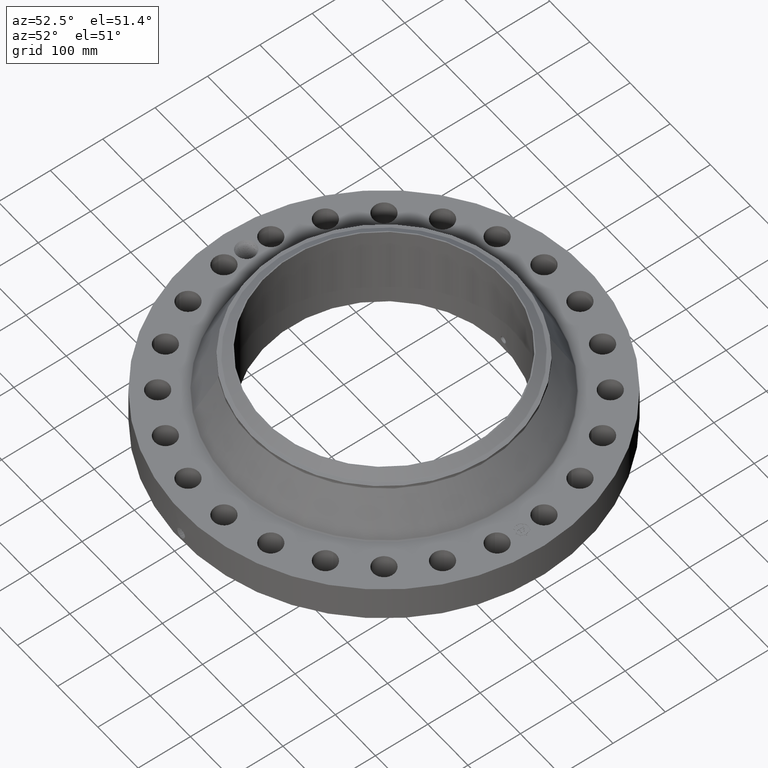
[diagram: clean part render]
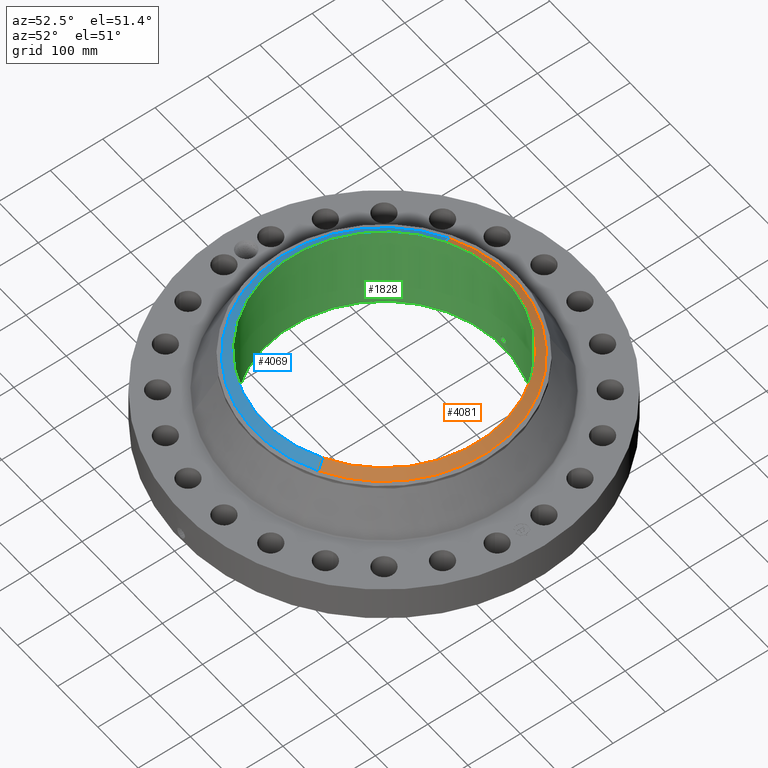
[diagram: same view with three faces highlighted in distinct colors, each labeled with its STEP entity id]
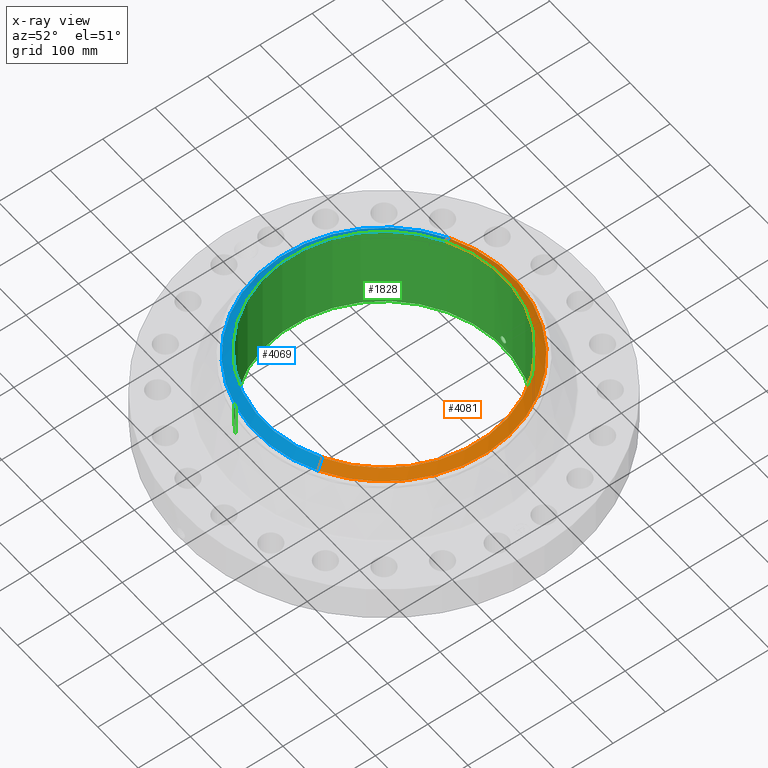
[diagram: x-ray of the same camera — body ghosted, the three highlighted faces saturated]
A machine part, auxiliary view with three faces highlighted in distinct colors.
The next image is the same camera in x-ray (body ghosted, the three faces saturated) — at least one of them is partly hidden behind the body in this view.
Their STEP definitions:

[orange] entity #4081 — the highlighted conical surface has half-angle 52.5 deg.
#3216=AXIS2_PLACEMENT_3D('Circle Axis2P3D',#3214,#3215,$) ;
#4042=AXIS2_PLACEMENT_3D('Cone Axis2P3D',#4039,#4040,#4041) ;
#4072=AXIS2_PLACEMENT_3D('Circle Axis2P3D',#4070,#4071,$) ;
#3214=CARTESIAN_POINT('Axis2P3D Location',(0.,0.,6.87000000003)) ;
#3218=CARTESIAN_POINT('Vertex',(4.33771769817,-7.94013898675,6.87000000003)) ;
#3220=CARTESIAN_POINT('Vertex',(-4.33771769817,7.94013898675,6.87000000003)) ;
#4039=CARTESIAN_POINT('Axis2P3D Location',(0.,0.,6.87000000003)) ;
#4044=CARTESIAN_POINT('Line Origine',(-4.49265900072,8.22375713866,6.62201437259)) ;
#4048=CARTESIAN_POINT('Vertex',(-4.64760030327,8.50737529056,6.37402874516)) ;
#4055=CARTESIAN_POINT('Vertex',(4.64760030327,-8.50737529056,6.37402874516)) ;
#4058=CARTESIAN_POINT('Line Origine',(4.49265900072,-8.22375713866,6.62201437259)) ;
#4070=CARTESIAN_POINT('Axis2P3D Location',(0.,0.,6.37402874516)) ;
#3215=DIRECTION('Axis2P3D Direction',(0.,0.,-0.0393700787402)) ;
#4040=DIRECTION('Axis2P3D Direction',(-0.,-0.,-0.0393700787402)) ;
#4041=DIRECTION('Axis2P3D XDirection',(-0.0188750212049,0.0345504945626,0.)) ;
#4045=DIRECTION('Vector Direction',(-0.014974561121,0.02741075027,-0.023966985394)) ;
#4059=DIRECTION('Vector Direction',(0.014974561121,-0.02741075027,-0.023966985394)) ;
#4071=DIRECTION('Axis2P3D Direction',(0.,0.,-0.0393700787402)) ;
#4046=VECTOR('Line Direction',#4045,0.0393700787402) ;
#4060=VECTOR('Line Direction',#4059,0.0393700787402) ;
#4076=ORIENTED_EDGE('',*,*,#3222,.F.) ;
#4077=ORIENTED_EDGE('',*,*,#4062,.T.) ;
#4078=ORIENTED_EDGE('',*,*,#4074,.T.) ;
#4079=ORIENTED_EDGE('',*,*,#4050,.F.) ;
#4081=ADVANCED_FACE('PartBody',(#4080),#4043,.T.) ;
#3217=CIRCLE('generated circle',#3216,9.04774015752) ;
#4073=CIRCLE('generated circle',#4072,9.69410248106) ;
#4043=CONICAL_SURFACE('Cone',#4042,9.04774015752,0.916297857297) ;
#3222=EDGE_CURVE('',#3219,#3221,#3217,.F.) ;
#4050=EDGE_CURVE('',#3221,#4049,#4047,.T.) ;
#4062=EDGE_CURVE('',#3219,#4056,#4061,.T.) ;
#4074=EDGE_CURVE('',#4056,#4049,#4073,.F.) ;
#4075=EDGE_LOOP('',(#4076,#4077,#4078,#4079)) ;
#4080=FACE_OUTER_BOUND('',#4075,.T.) ;
#4047=LINE('Line',#4044,#4046) ;
#4061=LINE('Line',#4058,#4060) ;
#3219=VERTEX_POINT('',#3218) ;
#3221=VERTEX_POINT('',#3220) ;
#4049=VERTEX_POINT('',#4048) ;
#4056=VERTEX_POINT('',#4055) ;

[blue] entity #4069 — the highlighted conical surface has half-angle 52.5 deg.
#3225=AXIS2_PLACEMENT_3D('Circle Axis2P3D',#3223,#3224,$) ;
#4042=AXIS2_PLACEMENT_3D('Cone Axis2P3D',#4039,#4040,#4041) ;
#4053=AXIS2_PLACEMENT_3D('Circle Axis2P3D',#4051,#4052,$) ;
#3218=CARTESIAN_POINT('Vertex',(4.33771769817,-7.94013898675,6.87000000003)) ;
#3220=CARTESIAN_POINT('Vertex',(-4.33771769817,7.94013898675,6.87000000003)) ;
#3223=CARTESIAN_POINT('Axis2P3D Location',(0.,0.,6.87000000003)) ;
#4039=CARTESIAN_POINT('Axis2P3D Location',(0.,0.,6.87000000003)) ;
#4044=CARTESIAN_POINT('Line Origine',(-4.49265900072,8.22375713866,6.62201437259)) ;
#4048=CARTESIAN_POINT('Vertex',(-4.64760030327,8.50737529056,6.37402874516)) ;
#4051=CARTESIAN_POINT('Axis2P3D Location',(0.,0.,6.37402874516)) ;
#4055=CARTESIAN_POINT('Vertex',(4.64760030327,-8.50737529056,6.37402874516)) ;
#4058=CARTESIAN_POINT('Line Origine',(4.49265900072,-8.22375713866,6.62201437259)) ;
#3224=DIRECTION('Axis2P3D Direction',(0.,0.,-0.0393700787402)) ;
#4040=DIRECTION('Axis2P3D Direction',(-0.,-0.,-0.0393700787402)) ;
#4041=DIRECTION('Axis2P3D XDirection',(-0.0188750212049,0.0345504945626,0.)) ;
#4045=DIRECTION('Vector Direction',(-0.014974561121,0.02741075027,-0.023966985394)) ;
#4052=DIRECTION('Axis2P3D Direction',(0.,0.,-0.0393700787402)) ;
#4059=DIRECTION('Vector Direction',(0.014974561121,-0.02741075027,-0.023966985394)) ;
#4046=VECTOR('Line Direction',#4045,0.0393700787402) ;
#4060=VECTOR('Line Direction',#4059,0.0393700787402) ;
#4064=ORIENTED_EDGE('',*,*,#3227,.F.) ;
#4065=ORIENTED_EDGE('',*,*,#4050,.T.) ;
#4066=ORIENTED_EDGE('',*,*,#4057,.T.) ;
#4067=ORIENTED_EDGE('',*,*,#4062,.F.) ;
#4069=ADVANCED_FACE('PartBody',(#4068),#4043,.T.) ;
#3226=CIRCLE('generated circle',#3225,9.04774015752) ;
#4054=CIRCLE('generated circle',#4053,9.69410248106) ;
#4043=CONICAL_SURFACE('Cone',#4042,9.04774015752,0.916297857297) ;
#3227=EDGE_CURVE('',#3221,#3219,#3226,.F.) ;
#4050=EDGE_CURVE('',#3221,#4049,#4047,.T.) ;
#4057=EDGE_CURVE('',#4049,#4056,#4054,.F.) ;
#4062=EDGE_CURVE('',#3219,#4056,#4061,.T.) ;
#4063=EDGE_LOOP('',(#4064,#4065,#4066,#4067)) ;
#4068=FACE_OUTER_BOUND('',#4063,.T.) ;
#4047=LINE('Line',#4044,#4046) ;
#4061=LINE('Line',#4058,#4060) ;
#3219=VERTEX_POINT('',#3218) ;
#3221=VERTEX_POINT('',#3220) ;
#4049=VERTEX_POINT('',#4048) ;
#4056=VERTEX_POINT('',#4055) ;

[green] entity #1828 — the highlighted cylindrical surface (partial cylindrical patch) has radius 227.813 mm, axis along (0, 0, -1).
#262=AXIS2_PLACEMENT_3D('Circle Axis2P3D',#260,#261,$) ;
#1705=AXIS2_PLACEMENT_3D('Cylinder Axis2P3D',#1702,#1703,#1704) ;
#1777=AXIS2_PLACEMENT_3D('Circle Axis2P3D',#1775,#1776,$) ;
#255=CARTESIAN_POINT('Vertex',(4.29996765576,7.87103799763,0.250000000001)) ;
#257=CARTESIAN_POINT('Vertex',(-4.29996765576,-7.87103799763,0.250000000001)) ;
#260=CARTESIAN_POINT('Axis2P3D Location',(0.,0.,0.250000000001)) ;
#1702=CARTESIAN_POINT('Axis2P3D Location',(0.,0.,3.56000000001)) ;
#1711=CARTESIAN_POINT('Vertex',(4.29996765576,7.87103799763,6.87000000003)) ;
#1713=CARTESIAN_POINT('Vertex',(-4.29996765576,-7.87103799763,6.87000000003)) ;
#1716=CARTESIAN_POINT('Line Origine',(4.29996765576,7.87103799763,3.56000000001)) ;
#1721=CARTESIAN_POINT('Line Origine',(-4.29996765576,-7.87103799763,3.56000000001)) ;
#1775=CARTESIAN_POINT('Axis2P3D Location',(0.,0.,6.87000000003)) ;
#1787=CARTESIAN_POINT('Control Point',(0.219395640474,8.96631621981,1.05985638466)) ;
#1788=CARTESIAN_POINT('Control Point',(0.194443026169,8.96692678212,1.10553183876)) ;
#1789=CARTESIAN_POINT('Control Point',(0.157605265635,8.96774130692,1.14471159551)) ;
#1790=CARTESIAN_POINT('Control Point',(0.111107995005,8.96853346439,1.17324309513)) ;
#1791=CARTESIAN_POINT('Control Point',(0.0336731189953,8.96916372939,1.19588261777)) ;
#1792=CARTESIAN_POINT('Control Point',(-0.0446715204473,8.96894592942,1.18805631159)) ;
#1793=CARTESIAN_POINT('Control Point',(-0.070301404385,8.96877685015,1.18204361456)) ;
#1794=CARTESIAN_POINT('Control Point',(-0.14395769398,8.96802968103,1.15421128571)) ;
#1795=CARTESIAN_POINT('Control Point',(-0.20324537686,8.96681009959,1.09949610017)) ;
#1796=CARTESIAN_POINT('Control Point',(-0.232210439125,8.96601020457,1.05325653876)) ;
#1797=CARTESIAN_POINT('Control Point',(-0.255840642738,8.96535265894,0.975109959111)) ;
#1798=CARTESIAN_POINT('Control Point',(-0.248282545409,8.96556280168,0.895745756832)) ;
#1799=CARTESIAN_POINT('Control Point',(-0.242048774445,8.96573863905,0.869183643979)) ;
#1800=CARTESIAN_POINT('Control Point',(-0.232315330216,8.96600008958,0.843792948794)) ;
#1801=CARTESIAN_POINT('Control Point',(-0.219395640473,8.96631621981,0.820143615352)) ;
#1802=CARTESIAN_POINT('Vertex',(0.219395640473,8.96631621981,1.05985638466)) ;
#1804=CARTESIAN_POINT('Vertex',(-0.219395640473,8.96631621981,0.820143615352)) ;
#1808=CARTESIAN_POINT('Control Point',(-0.219395640473,8.96631621981,0.820143615352)) ;
#1809=CARTESIAN_POINT('Control Point',(-0.194443026175,8.96692678212,0.774468161253)) ;
#1810=CARTESIAN_POINT('Control Point',(-0.157605265653,8.96774130692,0.735288404519)) ;
#1811=CARTESIAN_POINT('Control Point',(-0.111107994981,8.96853346439,0.706756904873)) ;
#1812=CARTESIAN_POINT('Control Point',(-0.0336731189611,8.96916372939,0.684117382235)) ;
#1813=CARTESIAN_POINT('Control Point',(0.044671520492,8.96894592942,0.691943688418)) ;
#1814=CARTESIAN_POINT('Control Point',(0.0703014043421,8.96877685015,0.697956385435)) ;
#1815=CARTESIAN_POINT('Control Point',(0.143957693985,8.96802968103,0.725788714289)) ;
#1816=CARTESIAN_POINT('Control Point',(0.203245376897,8.96681009959,0.780503899871)) ;
#1817=CARTESIAN_POINT('Control Point',(0.23221043911,8.96601020457,0.826743461198)) ;
#1818=CARTESIAN_POINT('Control Point',(0.255840642729,8.96535265894,0.904890040835)) ;
#1819=CARTESIAN_POINT('Control Point',(0.248282545417,8.96556280168,0.984254243101)) ;
#1820=CARTESIAN_POINT('Control Point',(0.242048774418,8.96573863905,1.0108163561)) ;
#1821=CARTESIAN_POINT('Control Point',(0.232315330198,8.96600008958,1.03620705125)) ;
#1822=CARTESIAN_POINT('Control Point',(0.219395640473,8.96631621981,1.05985638466)) ;
#261=DIRECTION('Axis2P3D Direction',(0.,0.,-0.0393700787402)) ;
#1703=DIRECTION('Axis2P3D Direction',(0.,0.,-0.0393700787402)) ;
#1704=DIRECTION('Axis2P3D XDirection',(-0.0188750212049,-0.0345504945626,0.)) ;
#1717=DIRECTION('Vector Direction',(0.,0.,-0.0393700787402)) ;
#1722=DIRECTION('Vector Direction',(0.,0.,-0.0393700787402)) ;
#1776=DIRECTION('Axis2P3D Direction',(0.,0.,-0.0393700787402)) ;
#1718=VECTOR('Line Direction',#1717,0.0393700787402) ;
#1723=VECTOR('Line Direction',#1722,0.0393700787402) ;
#1781=ORIENTED_EDGE('',*,*,#1779,.F.) ;
#1782=ORIENTED_EDGE('',*,*,#1725,.T.) ;
#1783=ORIENTED_EDGE('',*,*,#264,.T.) ;
#1784=ORIENTED_EDGE('',*,*,#1720,.F.) ;
#1825=ORIENTED_EDGE('',*,*,#1806,.F.) ;
#1826=ORIENTED_EDGE('',*,*,#1823,.F.) ;
#1827=FACE_BOUND('',#1824,.T.) ;
#1828=ADVANCED_FACE('PartBody',(#1785,#1827),#1706,.F.) ;
#1786=B_SPLINE_CURVE_WITH_KNOTS('',5,(#1787,#1788,#1789,#1790,#1791,#1792,#1793,#1794,#1795,#1796,#1797,#1798,#1799,#1800,#1801),.UNSPECIFIED.,.F.,.U.,(6,3,3,3,6),(0.,9.34853349998,14.022877492,23.3729149434,28.2132956302),.UNSPECIFIED.) ;
#1807=B_SPLINE_CURVE_WITH_KNOTS('',5,(#1808,#1809,#1810,#1811,#1812,#1813,#1814,#1815,#1816,#1817,#1818,#1819,#1820,#1821,#1822),.UNSPECIFIED.,.F.,.U.,(6,3,3,3,6),(0.,9.34853349777,14.0228774938,23.3729149495,28.2132956297),.UNSPECIFIED.) ;
#263=CIRCLE('generated circle',#262,8.96900000004) ;
#1778=CIRCLE('generated circle',#1777,8.96900000004) ;
#1706=CYLINDRICAL_SURFACE('generated cylinder',#1705,8.96900000004) ;
#264=EDGE_CURVE('',#258,#256,#263,.T.) ;
#1720=EDGE_CURVE('',#1712,#256,#1719,.T.) ;
#1725=EDGE_CURVE('',#1714,#258,#1724,.T.) ;
#1779=EDGE_CURVE('',#1714,#1712,#1778,.T.) ;
#1806=EDGE_CURVE('',#1803,#1805,#1786,.T.) ;
#1823=EDGE_CURVE('',#1805,#1803,#1807,.T.) ;
#1780=EDGE_LOOP('',(#1781,#1782,#1783,#1784)) ;
#1824=EDGE_LOOP('',(#1825,#1826)) ;
#1785=FACE_OUTER_BOUND('',#1780,.T.) ;
#1719=LINE('Line',#1716,#1718) ;
#1724=LINE('Line',#1721,#1723) ;
#256=VERTEX_POINT('',#255) ;
#258=VERTEX_POINT('',#257) ;
#1712=VERTEX_POINT('',#1711) ;
#1714=VERTEX_POINT('',#1713) ;
#1803=VERTEX_POINT('',#1802) ;
#1805=VERTEX_POINT('',#1804) ;